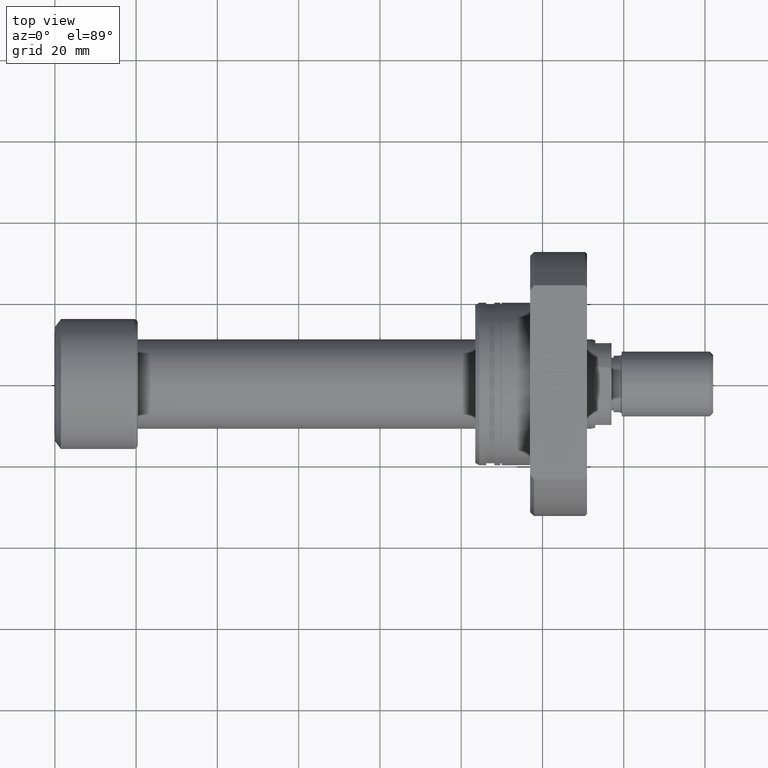
[diagram: clean part render]
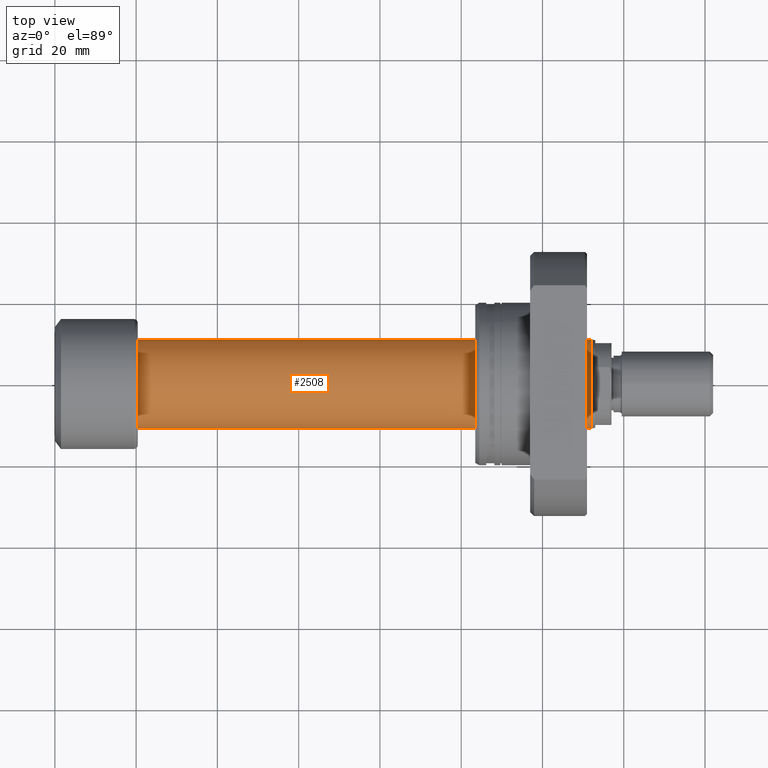
[diagram: same view with one face highlighted and labeled with its STEP entity id]
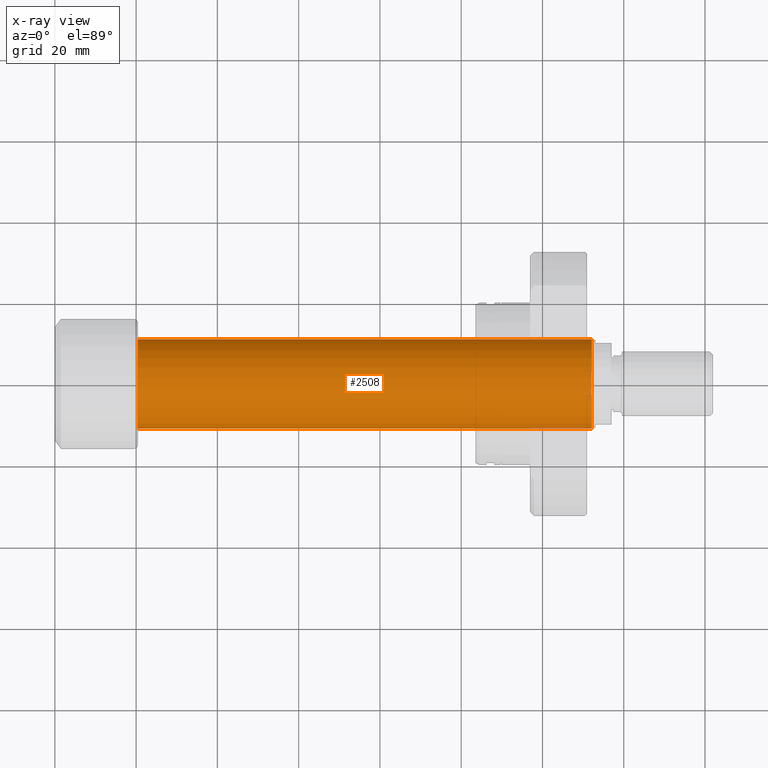
[diagram: x-ray of the same camera — body ghosted, the highlighted face saturated]
A machine part, top view. The second image highlights one B-rep face of the part: STEP entity #2508.
The next image is the same camera in x-ray: the body ghosted, the highlighted face saturated — about 0% of this face is hidden behind the body in this view.
In plain terms, the highlighted cylindrical surface (partial cylindrical patch) has radius 11 mm, axis along (-1, -0, -0).
Its self-contained STEP definition (entity closure, byte-faithful):
#385 = CARTESIAN_POINT ( 'NONE',  ( 132.0667575123237611, -11.00000000000019185, 0.000000000000000000 ) ) ;
#388 = ORIENTED_EDGE ( 'NONE', *, *, #1448, .F. ) ;
#530 = DIRECTION ( 'NONE',  ( 1.069542322069065801E-17, -1.000000000000000000, 0.000000000000000000 ) ) ;
#697 = CARTESIAN_POINT ( 'NONE',  ( 132.0667575123237611, 11.00000000000019362, 1.347111479062112268E-15 ) ) ;
#745 = ORIENTED_EDGE ( 'NONE', *, *, #831, .T. ) ;
#781 = CARTESIAN_POINT ( 'NONE',  ( 20.39999999999999503, 11.00000000000000000, 1.347111479062094321E-15 ) ) ;
#793 = LINE ( 'NONE', #1147, #1307 ) ;
#801 = CARTESIAN_POINT ( 'NONE',  ( 1.176496554275982688E-16, -11.00000000000009592, 0.000000000000000000 ) ) ;
#831 = EDGE_CURVE ( 'NONE', #2706, #3186, #1127, .T. ) ;
#843 = LINE ( 'NONE', #801, #3673 ) ;
#1064 = EDGE_CURVE ( 'NONE', #2706, #3064, #843, .T. ) ;
#1106 = VERTEX_POINT ( 'NONE', #781 ) ;
#1127 = CIRCLE ( 'NONE', #1527, 11.00000000000019362 ) ;
#1147 = CARTESIAN_POINT ( 'NONE',  ( -1.176496554275982688E-16, 11.00000000000009592, 1.347111479062100435E-15 ) ) ;
#1209 = CARTESIAN_POINT ( 'NONE',  ( 132.0667575123237611, 1.412509864978630128E-15, 0.000000000000000000 ) ) ;
#1307 = VECTOR ( 'NONE', #3139, 1000.000000000000000 ) ;
#1448 = EDGE_CURVE ( 'NONE', #3064, #1106, #2784, .T. ) ;
#1527 = AXIS2_PLACEMENT_3D ( 'NONE', #1209, #3468, #2059 ) ;
#1599 = ORIENTED_EDGE ( 'NONE', *, *, #1976, .T. ) ;
#1664 = AXIS2_PLACEMENT_3D ( 'NONE', #2282, #3115, #3685 ) ;
#1949 = DIRECTION ( 'NONE',  ( -1.000000000000000000, -1.069542322069065801E-17, -0.000000000000000000 ) ) ;
#1976 = EDGE_CURVE ( 'NONE', #3186, #1106, #793, .T. ) ;
#2059 = DIRECTION ( 'NONE',  ( 0.000000000000000000, -1.000000000000000000, 0.000000000000000000 ) ) ;
#2082 = AXIS2_PLACEMENT_3D ( 'NONE', #2834, #1949, #530 ) ;
#2282 = CARTESIAN_POINT ( 'NONE',  ( 20.39999999999999503, 2.181866337020893623E-16, 0.000000000000000000 ) ) ;
#2508 = ADVANCED_FACE ( 'NONE', ( #2553 ), #3341, .T. ) ;
#2553 = FACE_OUTER_BOUND ( 'NONE', #3071, .T. ) ;
#2618 = CARTESIAN_POINT ( 'NONE',  ( 20.39999999999999503, -11.00000000000000000, 0.000000000000000000 ) ) ;
#2706 = VERTEX_POINT ( 'NONE', #385 ) ;
#2784 = CIRCLE ( 'NONE', #1664, 11.00000000000000000 ) ;
#2828 = DIRECTION ( 'NONE',  ( -1.000000000000000000, -1.069542322069065801E-17, -0.000000000000000000 ) ) ;
#2834 = CARTESIAN_POINT ( 'NONE',  ( 0.000000000000000000, 0.000000000000000000, 0.000000000000000000 ) ) ;
#3064 = VERTEX_POINT ( 'NONE', #2618 ) ;
#3071 = EDGE_LOOP ( 'NONE', ( #745, #1599, #388, #3524 ) ) ;
#3115 = DIRECTION ( 'NONE',  ( -1.000000000000000000, -1.069542322069065801E-17, -0.000000000000000000 ) ) ;
#3139 = DIRECTION ( 'NONE',  ( -1.000000000000000000, -1.069542322069065801E-17, -0.000000000000000000 ) ) ;
#3186 = VERTEX_POINT ( 'NONE', #697 ) ;
#3341 = CYLINDRICAL_SURFACE ( 'NONE', #2082, 11.00000000000009592 ) ;
#3468 = DIRECTION ( 'NONE',  ( -1.000000000000000000, -1.069542322069065801E-17, -0.000000000000000000 ) ) ;
#3524 = ORIENTED_EDGE ( 'NONE', *, *, #1064, .F. ) ;
#3673 = VECTOR ( 'NONE', #2828, 1000.000000000000000 ) ;
#3685 = DIRECTION ( 'NONE',  ( 0.000000000000000000, -1.000000000000000000, 0.000000000000000000 ) ) ;